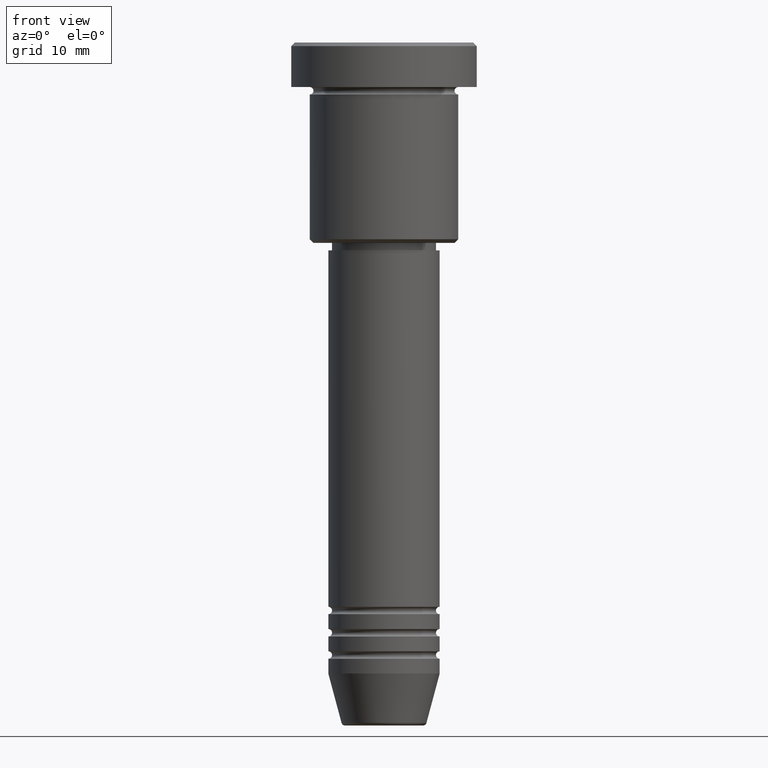
[diagram: clean part render]
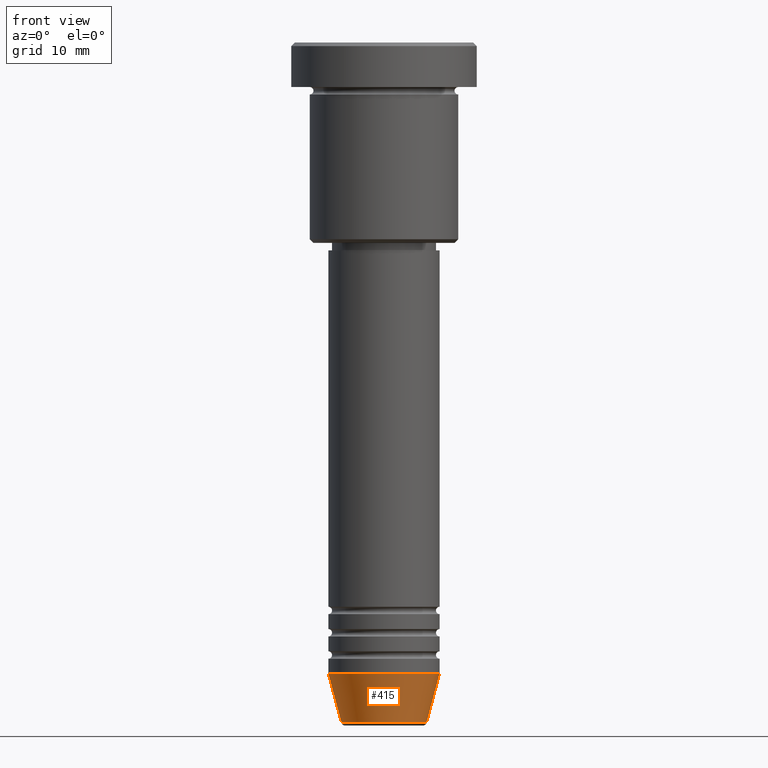
[diagram: same view with one face highlighted and labeled with its STEP entity id]
A machine part, front view. The second image highlights one B-rep face of the part: STEP entity #415.
In plain terms, the highlighted conical surface has half-angle 15 deg.
Its self-contained STEP definition (entity closure, byte-faithful):
#5 = AXIS2_PLACEMENT_3D ( 'NONE', #130, #38, #15 ) ;
#15 = DIRECTION ( 'NONE',  ( 1.000000000000000000, 0.000000000000000000, 0.000000000000000000 ) ) ;
#38 = DIRECTION ( 'NONE',  ( -0.000000000000000000, -0.000000000000000000, 1.000000000000000000 ) ) ;
#74 = DIRECTION ( 'NONE',  ( 1.000000000000000000, 0.000000000000000000, 0.000000000000000000 ) ) ;
#130 = CARTESIAN_POINT ( 'NONE',  ( 0.000000000000000000, 0.000000000000000000, -84.99999999999998579 ) ) ;
#201 = AXIS2_PLACEMENT_3D ( 'NONE', #270, #540, #989 ) ;
#210 = VERTEX_POINT ( 'NONE', #1154 ) ;
#212 = LINE ( 'NONE', #746, #298 ) ;
#269 = VERTEX_POINT ( 'NONE', #780 ) ;
#270 = CARTESIAN_POINT ( 'NONE',  ( 0.000000000000000000, 0.000000000000000000, -84.99999999999998579 ) ) ;
#283 = ORIENTED_EDGE ( 'NONE', *, *, #475, .T. ) ;
#298 = VECTOR ( 'NONE', #916, 1000.000000000000000 ) ;
#367 = FACE_OUTER_BOUND ( 'NONE', #992, .T. ) ;
#368 = CIRCLE ( 'NONE', #1038, 5.723655072137191269 ) ;
#412 = CIRCLE ( 'NONE', #5, 7.500000000000000000 ) ;
#415 = ADVANCED_FACE ( 'NONE', ( #367 ), #612, .T. ) ;
#475 = EDGE_CURVE ( 'NONE', #210, #1131, #368, .T. ) ;
#514 = ORIENTED_EDGE ( 'NONE', *, *, #846, .T. ) ;
#540 = DIRECTION ( 'NONE',  ( -0.000000000000000000, -0.000000000000000000, 1.000000000000000000 ) ) ;
#545 = EDGE_CURVE ( 'NONE', #1164, #269, #412, .T. ) ;
#600 = LINE ( 'NONE', #1069, #999 ) ;
#612 = CONICAL_SURFACE ( 'NONE', #201, 7.500000000000000000, 0.2617993877991500740 ) ;
#678 = ORIENTED_EDGE ( 'NONE', *, *, #545, .F. ) ;
#690 = DIRECTION ( 'NONE',  ( 0.2588190451025213501, 0.000000000000000000, 0.9659258262890680902 ) ) ;
#746 = CARTESIAN_POINT ( 'NONE',  ( -7.500000000000000000, 9.184850993605147944E-16, -84.99999999999998579 ) ) ;
#780 = CARTESIAN_POINT ( 'NONE',  ( 7.500000000000000000, 0.000000000000000000, -84.99999999999998579 ) ) ;
#816 = CARTESIAN_POINT ( 'NONE',  ( -7.500000000000000000, 9.184850993605147944E-16, -84.99999999999998579 ) ) ;
#834 = ORIENTED_EDGE ( 'NONE', *, *, #1132, .F. ) ;
#846 = EDGE_CURVE ( 'NONE', #1131, #269, #600, .T. ) ;
#916 = DIRECTION ( 'NONE',  ( -0.2588190451025213501, 3.169619151431772337E-17, 0.9659258262890680902 ) ) ;
#982 = DIRECTION ( 'NONE',  ( -0.000000000000000000, -0.000000000000000000, 1.000000000000000000 ) ) ;
#989 = DIRECTION ( 'NONE',  ( 1.000000000000000000, 0.000000000000000000, 0.000000000000000000 ) ) ;
#992 = EDGE_LOOP ( 'NONE', ( #834, #283, #514, #678 ) ) ;
#999 = VECTOR ( 'NONE', #690, 1000.000000000000000 ) ;
#1002 = CARTESIAN_POINT ( 'NONE',  ( 5.723655072137191269, 0.000000000000000000, -91.62940952255125637 ) ) ;
#1038 = AXIS2_PLACEMENT_3D ( 'NONE', #1094, #982, #74 ) ;
#1069 = CARTESIAN_POINT ( 'NONE',  ( 7.500000000000000000, 0.000000000000000000, -84.99999999999998579 ) ) ;
#1094 = CARTESIAN_POINT ( 'NONE',  ( 0.000000000000000000, 0.000000000000000000, -91.62940952255125637 ) ) ;
#1131 = VERTEX_POINT ( 'NONE', #1002 ) ;
#1132 = EDGE_CURVE ( 'NONE', #210, #1164, #212, .T. ) ;
#1154 = CARTESIAN_POINT ( 'NONE',  ( -5.723655072137190380, 8.097153428560735915E-16, -91.62940952255125637 ) ) ;
#1164 = VERTEX_POINT ( 'NONE', #816 ) ;